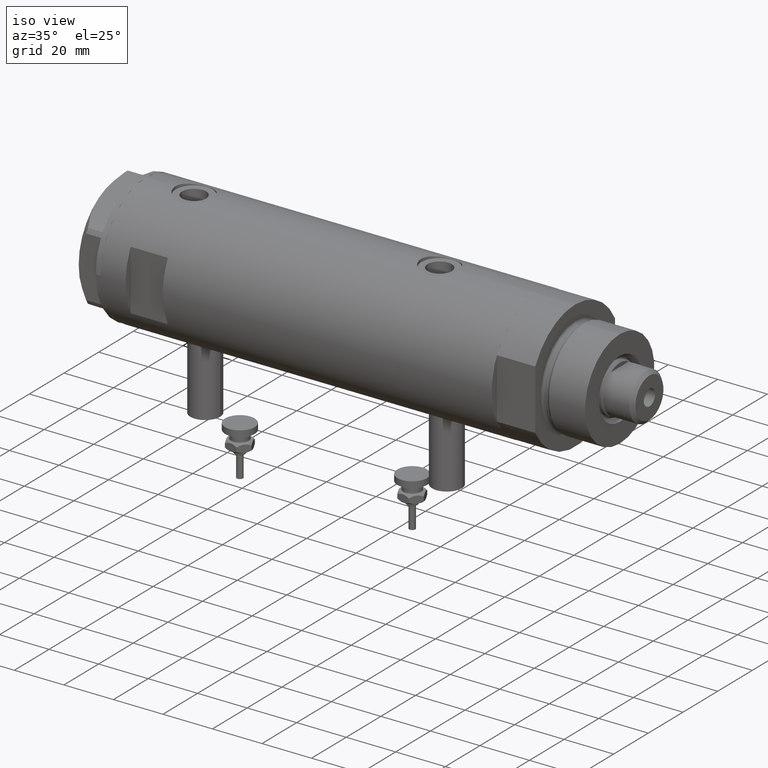
[diagram: clean part render]
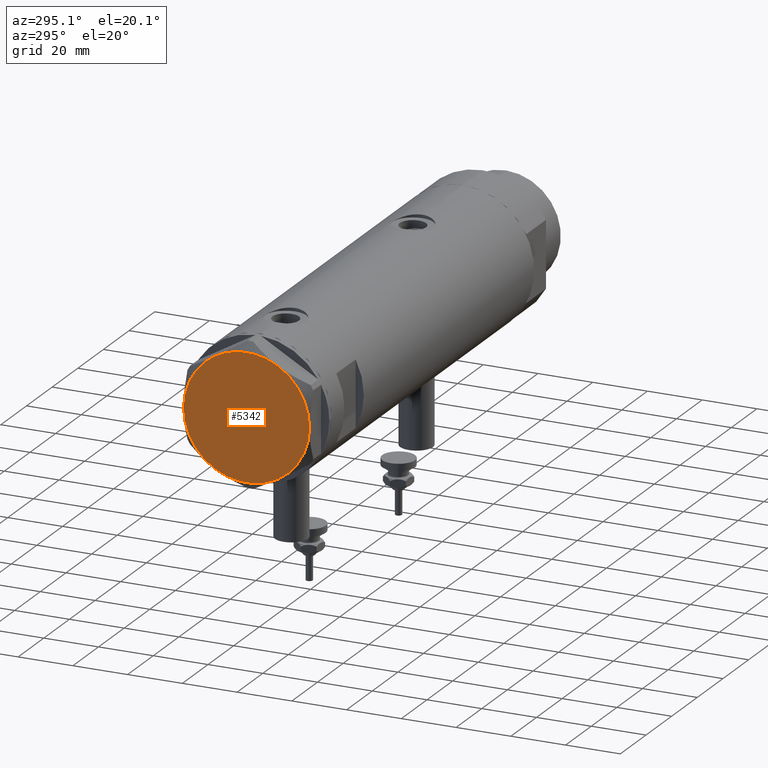
[diagram: tour spotlight — one face highlighted and labeled with its STEP entity id]
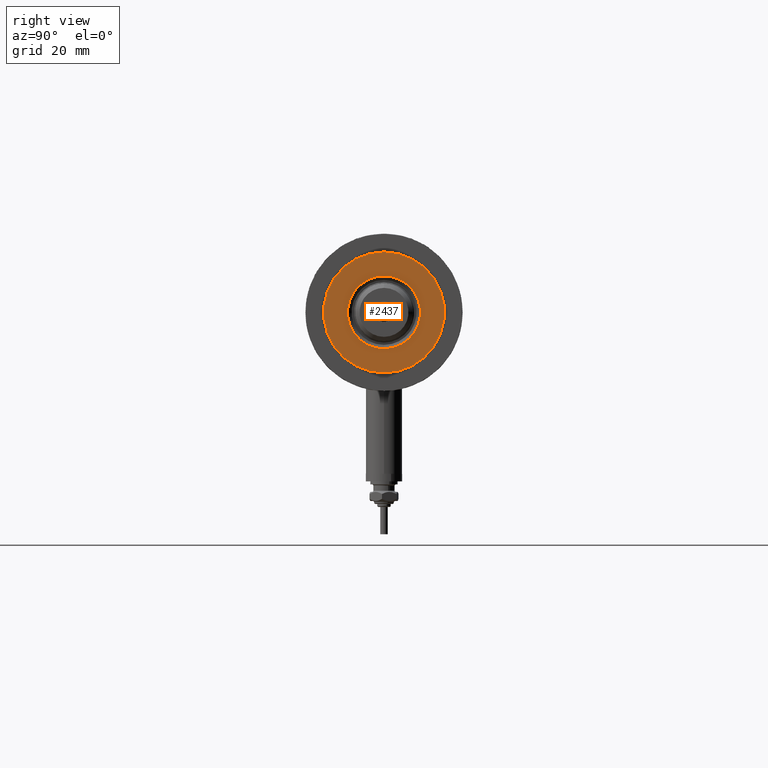
[diagram: tour spotlight — one face highlighted and labeled with its STEP entity id]
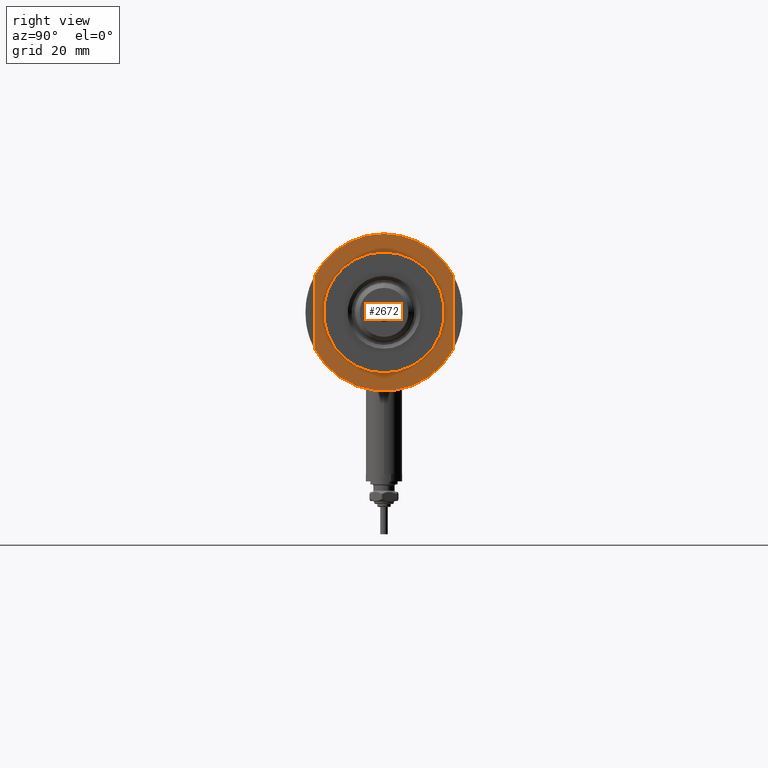
[diagram: tour spotlight — one face highlighted and labeled with its STEP entity id]
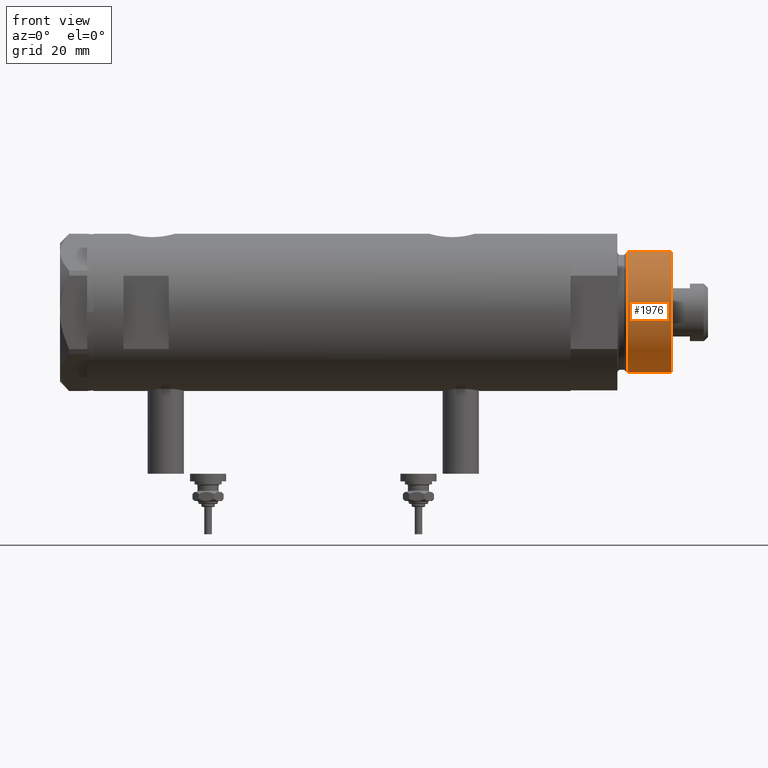
[diagram: tour spotlight — one face highlighted and labeled with its STEP entity id]
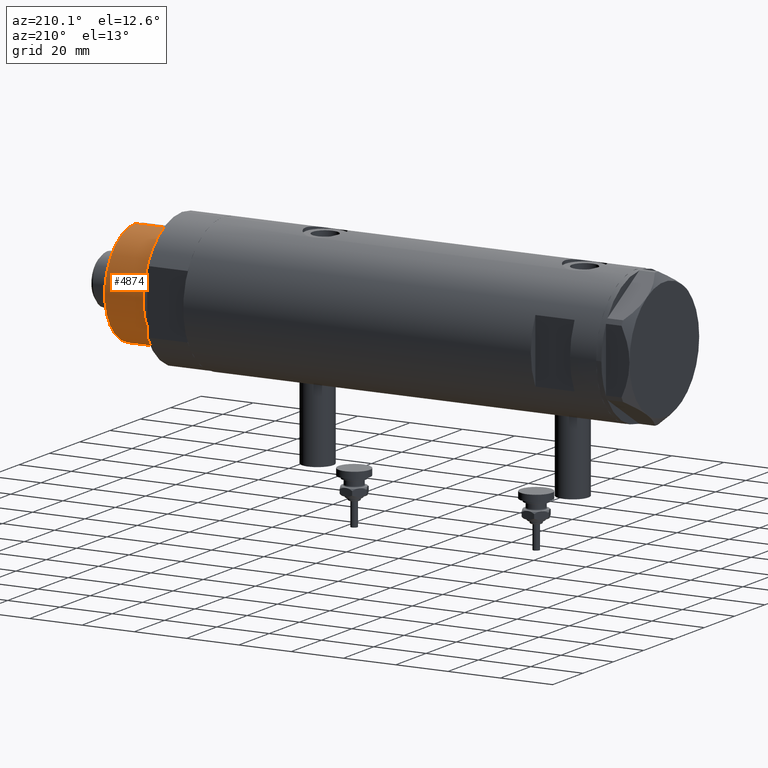
[diagram: tour spotlight — one face highlighted and labeled with its STEP entity id]
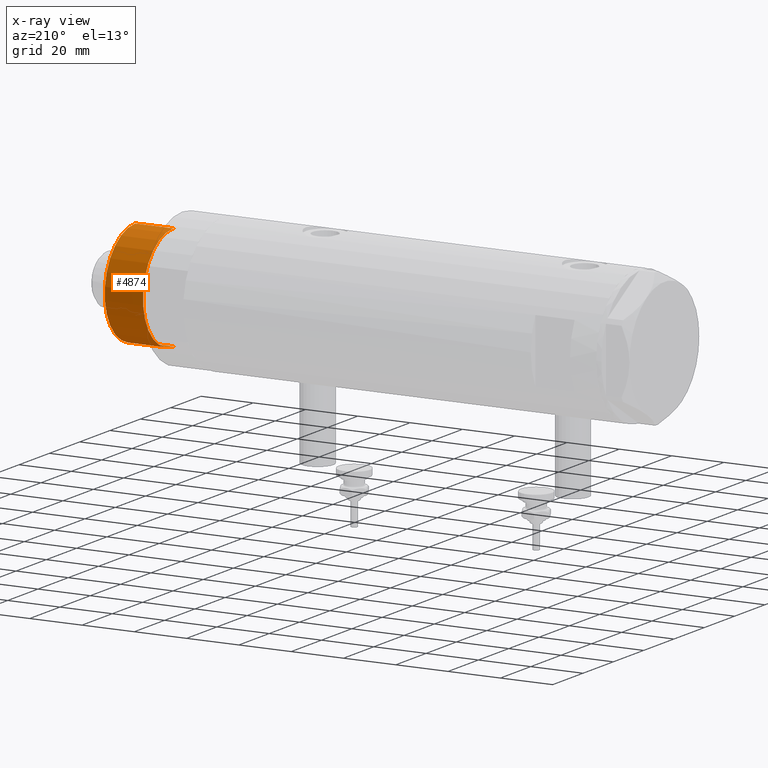
[diagram: x-ray of the same camera — body ghosted, this tour face saturated]
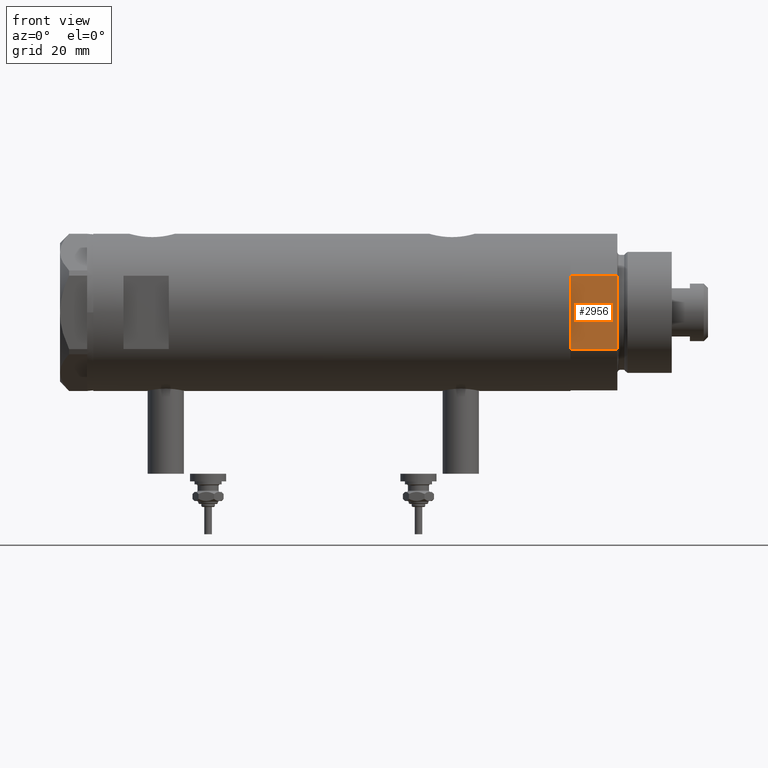
[diagram: tour spotlight — one face highlighted and labeled with its STEP entity id]
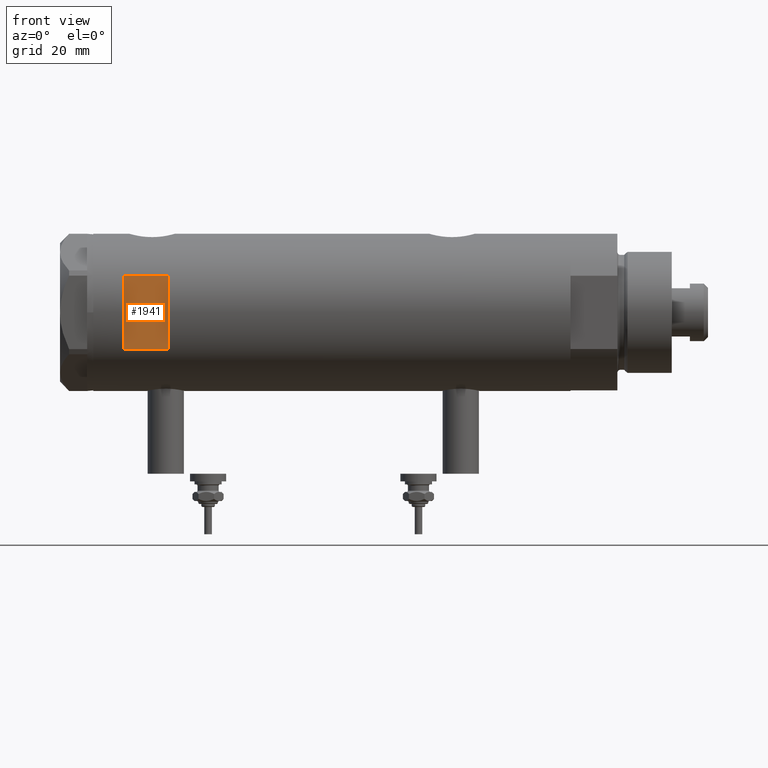
[diagram: tour spotlight — one face highlighted and labeled with its STEP entity id]
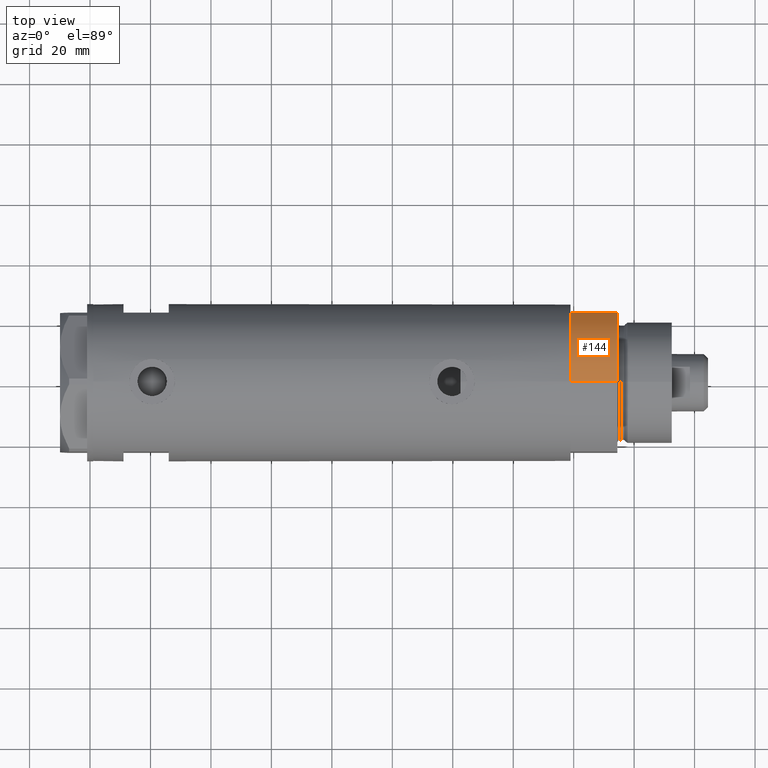
[diagram: tour spotlight — one face highlighted and labeled with its STEP entity id]
A machine part: a face-by-face anatomy tour. The part has 226 B-rep faces; the first image is the clean iso view, then the 8 largest visible faces are spotlighted one at a time (largest first), each with its STEP entity span.

Face 1 — auxiliary view, entity #5342. In plain terms, the highlighted planar face has unit normal (-1, -0, 0).
Definition (entity closure, byte-faithful):
#79 = EDGE_CURVE ( 'NONE', #1526, #1326, #6209, .T. ) ;
#153 = ORIENTED_EDGE ( 'NONE', *, *, #2644, .T. ) ;
#221 = CARTESIAN_POINT ( 'NONE',  ( -23.00000000000004619, -8.112498833180673323E-14, 9.000000000000000000 ) ) ;
#322 = VERTEX_POINT ( 'NONE', #4387 ) ;
#358 = FACE_OUTER_BOUND ( 'NONE', #4283, .T. ) ;
#404 = AXIS2_PLACEMENT_3D ( 'NONE', #3732, #4115, #1167 ) ;
#526 = EDGE_CURVE ( 'NONE', #3933, #4462, #4187, .T. ) ;
#836 = AXIS2_PLACEMENT_3D ( 'NONE', #4693, #2264, #2356 ) ;
#891 = DIRECTION ( 'NONE',  ( 0.000000000000000000, 0.000000000000000000, 1.000000000000000000 ) ) ;
#1167 = DIRECTION ( 'NONE',  ( 1.000000000000000000, 0.000000000000000000, 0.000000000000000000 ) ) ;
#1280 = DIRECTION ( 'NONE',  ( 1.000000000000000000, 0.000000000000000000, 0.000000000000000000 ) ) ;
#1326 = VERTEX_POINT ( 'NONE', #221 ) ;
#1526 = VERTEX_POINT ( 'NONE', #3296 ) ;
#1767 = DIRECTION ( 'NONE',  ( 1.000000000000000000, 0.000000000000000000, -0.000000000000000000 ) ) ;
#1965 = CIRCLE ( 'NONE', #4594, 23.00000000000004619 ) ;
#2036 = ORIENTED_EDGE ( 'NONE', *, *, #79, .T. ) ;
#2264 = DIRECTION ( 'NONE',  ( 0.000000000000000000, 0.000000000000000000, 1.000000000000000000 ) ) ;
#2290 = PLANE ( 'NONE',  #6045 ) ;
#2356 = DIRECTION ( 'NONE',  ( 1.000000000000000000, 0.000000000000000000, 0.000000000000000000 ) ) ;
#2490 = VERTEX_POINT ( 'NONE', #2656 ) ;
#2636 = EDGE_CURVE ( 'NONE', #322, #2490, #4897, .T. ) ;
#2644 = EDGE_CURVE ( 'NONE', #1326, #322, #3192, .T. ) ;
#2656 = CARTESIAN_POINT ( 'NONE',  ( 11.50000000000018296, -19.91858428704203732, 9.000000000000000000 ) ) ;
#2724 = CARTESIAN_POINT ( 'NONE',  ( 0.000000000000000000, 0.000000000000000000, 9.000000000000000000 ) ) ;
#2881 = AXIS2_PLACEMENT_3D ( 'NONE', #4554, #5131, #5606 ) ;
#3124 = DIRECTION ( 'NONE',  ( 1.000000000000000000, 0.000000000000000000, 0.000000000000000000 ) ) ;
#3179 = CARTESIAN_POINT ( 'NONE',  ( 22.99999999999995026, 2.373657066004705010E-13, 9.000000000000000000 ) ) ;
#3192 = CIRCLE ( 'NONE', #4399, 23.00000000000004619 ) ;
#3296 = CARTESIAN_POINT ( 'NONE',  ( -11.50000000000004441, 19.91858428704211548, 9.000000000000000000 ) ) ;
#3499 = EDGE_CURVE ( 'NONE', #4462, #1526, #5118, .T. ) ;
#3732 = CARTESIAN_POINT ( 'NONE',  ( 0.000000000000000000, 0.000000000000000000, 9.000000000000000000 ) ) ;
#3933 = VERTEX_POINT ( 'NONE', #3179 ) ;
#3957 = ORIENTED_EDGE ( 'NONE', *, *, #3499, .T. ) ;
#3975 = ORIENTED_EDGE ( 'NONE', *, *, #4500, .T. ) ;
#4115 = DIRECTION ( 'NONE',  ( 0.000000000000000000, 0.000000000000000000, 1.000000000000000000 ) ) ;
#4187 = CIRCLE ( 'NONE', #4376, 23.00000000000004619 ) ;
#4283 = EDGE_LOOP ( 'NONE', ( #3975, #4606, #3957, #2036, #153, #4869 ) ) ;
#4376 = AXIS2_PLACEMENT_3D ( 'NONE', #5046, #4540, #3124 ) ;
#4387 = CARTESIAN_POINT ( 'NONE',  ( -11.49999999999990585, -19.91858428704219364, 9.000000000000000000 ) ) ;
#4399 = AXIS2_PLACEMENT_3D ( 'NONE', #2724, #6157, #1280 ) ;
#4462 = VERTEX_POINT ( 'NONE', #6213 ) ;
#4500 = EDGE_CURVE ( 'NONE', #2490, #3933, #1965, .T. ) ;
#4540 = DIRECTION ( 'NONE',  ( 0.000000000000000000, 0.000000000000000000, 1.000000000000000000 ) ) ;
#4554 = CARTESIAN_POINT ( 'NONE',  ( 0.000000000000000000, 0.000000000000000000, 9.000000000000000000 ) ) ;
#4594 = AXIS2_PLACEMENT_3D ( 'NONE', #4957, #5921, #5885 ) ;
#4606 = ORIENTED_EDGE ( 'NONE', *, *, #526, .T. ) ;
#4693 = CARTESIAN_POINT ( 'NONE',  ( 0.000000000000000000, 0.000000000000000000, 9.000000000000000000 ) ) ;
#4869 = ORIENTED_EDGE ( 'NONE', *, *, #2636, .T. ) ;
#4897 = CIRCLE ( 'NONE', #2881, 23.00000000000004619 ) ;
#4957 = CARTESIAN_POINT ( 'NONE',  ( 0.000000000000000000, 0.000000000000000000, 9.000000000000000000 ) ) ;
#5046 = CARTESIAN_POINT ( 'NONE',  ( 0.000000000000000000, 0.000000000000000000, 9.000000000000000000 ) ) ;
#5118 = CIRCLE ( 'NONE', #836, 23.00000000000004619 ) ;
#5131 = DIRECTION ( 'NONE',  ( 0.000000000000000000, 0.000000000000000000, 1.000000000000000000 ) ) ;
#5342 = ADVANCED_FACE ( 'NONE', ( #358 ), #2290, .T. ) ;
#5606 = DIRECTION ( 'NONE',  ( 1.000000000000000000, 0.000000000000000000, 0.000000000000000000 ) ) ;
#5885 = DIRECTION ( 'NONE',  ( 1.000000000000000000, 0.000000000000000000, 0.000000000000000000 ) ) ;
#5921 = DIRECTION ( 'NONE',  ( 0.000000000000000000, 0.000000000000000000, 1.000000000000000000 ) ) ;
#6045 = AXIS2_PLACEMENT_3D ( 'NONE', #6138, #891, #1767 ) ;
#6138 = CARTESIAN_POINT ( 'NONE',  ( 0.000000000000000000, 0.000000000000000000, 9.000000000000000000 ) ) ;
#6157 = DIRECTION ( 'NONE',  ( 0.000000000000000000, 0.000000000000000000, 1.000000000000000000 ) ) ;
#6209 = CIRCLE ( 'NONE', #404, 23.00000000000004619 ) ;
#6213 = CARTESIAN_POINT ( 'NONE',  ( 11.49999999999990408, 19.91858428704219364, 9.000000000000000000 ) ) ;

Face 2 — right view, entity #2437. In plain terms, the highlighted planar face has unit normal (1, 0, -0).
Definition (entity closure, byte-faithful):
#83 = VERTEX_POINT ( 'NONE', #2742 ) ;
#299 = CARTESIAN_POINT ( 'NONE',  ( 0.000000000000000000, 0.000000000000000000, 33.50000000000000000 ) ) ;
#303 = CIRCLE ( 'NONE', #2357, 19.99999999999999645 ) ;
#625 = EDGE_CURVE ( 'NONE', #83, #3099, #303, .T. ) ;
#928 = CARTESIAN_POINT ( 'NONE',  ( -12.05000000000000426, 1.475699392972560823E-15, 33.50000000000000000 ) ) ;
#1113 = DIRECTION ( 'NONE',  ( 1.000000000000000000, 0.000000000000000000, -0.000000000000000000 ) ) ;
#1359 = CIRCLE ( 'NONE', #4910, 12.05000000000000426 ) ;
#1370 = VERTEX_POINT ( 'NONE', #4552 ) ;
#1879 = DIRECTION ( 'NONE',  ( 0.000000000000000000, 0.000000000000000000, 1.000000000000000000 ) ) ;
#2357 = AXIS2_PLACEMENT_3D ( 'NONE', #299, #3154, #3659 ) ;
#2383 = CIRCLE ( 'NONE', #2776, 19.99999999999999645 ) ;
#2437 = ADVANCED_FACE ( 'NONE', ( #3137, #3614 ), #3583, .T. ) ;
#2742 = CARTESIAN_POINT ( 'NONE',  ( -19.99999999999999645, 0.000000000000000000, 33.50000000000000000 ) ) ;
#2759 = DIRECTION ( 'NONE',  ( 1.000000000000000000, 0.000000000000000000, 0.000000000000000000 ) ) ;
#2776 = AXIS2_PLACEMENT_3D ( 'NONE', #4765, #1879, #5178 ) ;
#3078 = CARTESIAN_POINT ( 'NONE',  ( 0.000000000000000000, 0.000000000000000000, 33.50000000000000000 ) ) ;
#3099 = VERTEX_POINT ( 'NONE', #3132 ) ;
#3100 = CIRCLE ( 'NONE', #3405, 12.05000000000000426 ) ;
#3116 = EDGE_CURVE ( 'NONE', #3099, #83, #2383, .T. ) ;
#3132 = CARTESIAN_POINT ( 'NONE',  ( 19.99999999999999645, 2.449293598294706119E-15, 33.50000000000000000 ) ) ;
#3137 = FACE_BOUND ( 'NONE', #3758, .T. ) ;
#3154 = DIRECTION ( 'NONE',  ( 0.000000000000000000, 0.000000000000000000, 1.000000000000000000 ) ) ;
#3405 = AXIS2_PLACEMENT_3D ( 'NONE', #3078, #4086, #6000 ) ;
#3583 = PLANE ( 'NONE',  #6239 ) ;
#3614 = FACE_OUTER_BOUND ( 'NONE', #3962, .T. ) ;
#3659 = DIRECTION ( 'NONE',  ( 1.000000000000000000, 0.000000000000000000, 0.000000000000000000 ) ) ;
#3689 = ORIENTED_EDGE ( 'NONE', *, *, #625, .T. ) ;
#3700 = VERTEX_POINT ( 'NONE', #928 ) ;
#3758 = EDGE_LOOP ( 'NONE', ( #4671, #4737 ) ) ;
#3839 = CARTESIAN_POINT ( 'NONE',  ( 0.000000000000000000, 0.000000000000000000, 33.50000000000000000 ) ) ;
#3962 = EDGE_LOOP ( 'NONE', ( #3689, #4997 ) ) ;
#4086 = DIRECTION ( 'NONE',  ( -0.000000000000000000, -0.000000000000000000, -1.000000000000000000 ) ) ;
#4199 = DIRECTION ( 'NONE',  ( -0.000000000000000000, -0.000000000000000000, -1.000000000000000000 ) ) ;
#4552 = CARTESIAN_POINT ( 'NONE',  ( 12.05000000000000426, 0.000000000000000000, 33.50000000000000000 ) ) ;
#4583 = CARTESIAN_POINT ( 'NONE',  ( 0.000000000000000000, 0.000000000000000000, 33.50000000000000000 ) ) ;
#4671 = ORIENTED_EDGE ( 'NONE', *, *, #5506, .T. ) ;
#4737 = ORIENTED_EDGE ( 'NONE', *, *, #5268, .T. ) ;
#4765 = CARTESIAN_POINT ( 'NONE',  ( 0.000000000000000000, 0.000000000000000000, 33.50000000000000000 ) ) ;
#4910 = AXIS2_PLACEMENT_3D ( 'NONE', #3839, #4199, #2759 ) ;
#4997 = ORIENTED_EDGE ( 'NONE', *, *, #3116, .T. ) ;
#5178 = DIRECTION ( 'NONE',  ( 1.000000000000000000, 0.000000000000000000, 0.000000000000000000 ) ) ;
#5268 = EDGE_CURVE ( 'NONE', #3700, #1370, #1359, .T. ) ;
#5506 = EDGE_CURVE ( 'NONE', #1370, #3700, #3100, .T. ) ;
#5964 = DIRECTION ( 'NONE',  ( 0.000000000000000000, 0.000000000000000000, 1.000000000000000000 ) ) ;
#6000 = DIRECTION ( 'NONE',  ( 1.000000000000000000, 0.000000000000000000, 0.000000000000000000 ) ) ;
#6239 = AXIS2_PLACEMENT_3D ( 'NONE', #4583, #5964, #1113 ) ;

Face 3 — right view, entity #2672. In plain terms, the highlighted planar face has unit normal (1, 0, -0).
Definition (entity closure, byte-faithful):
#13 = CIRCLE ( 'NONE', #4310, 26.00000000000000355 ) ;
#160 = EDGE_CURVE ( 'NONE', #3357, #5424, #6002, .T. ) ;
#260 = CARTESIAN_POINT ( 'NONE',  ( 0.000000000000000000, 0.000000000000000000, 15.50000000000000000 ) ) ;
#288 = DIRECTION ( 'NONE',  ( 1.000000000000000000, 0.000000000000000000, -0.000000000000000000 ) ) ;
#302 = LINE ( 'NONE', #2326, #2892 ) ;
#579 = ORIENTED_EDGE ( 'NONE', *, *, #4146, .T. ) ;
#620 = DIRECTION ( 'NONE',  ( 0.000000000000000000, 0.000000000000000000, 1.000000000000000000 ) ) ;
#626 = VECTOR ( 'NONE', #5344, 1000.000000000000000 ) ;
#723 = EDGE_LOOP ( 'NONE', ( #4637, #789 ) ) ;
#774 = CARTESIAN_POINT ( 'NONE',  ( 12.12435565298215323, -22.99999999999999645, 15.50000000000000000 ) ) ;
#789 = ORIENTED_EDGE ( 'NONE', *, *, #160, .T. ) ;
#875 = VERTEX_POINT ( 'NONE', #2419 ) ;
#1240 = CIRCLE ( 'NONE', #4114, 26.00000000000000355 ) ;
#1245 = DIRECTION ( 'NONE',  ( 0.000000000000000000, 0.000000000000000000, 1.000000000000000000 ) ) ;
#1246 = CIRCLE ( 'NONE', #2075, 26.00000000000000355 ) ;
#1317 = AXIS2_PLACEMENT_3D ( 'NONE', #6180, #4268, #1423 ) ;
#1423 = DIRECTION ( 'NONE',  ( 1.000000000000000000, 0.000000000000000000, 0.000000000000000000 ) ) ;
#1429 = DIRECTION ( 'NONE',  ( -0.000000000000000000, -0.000000000000000000, -1.000000000000000000 ) ) ;
#1464 = CARTESIAN_POINT ( 'NONE',  ( -12.12435565298215145, 23.00000000000000355, 15.50000000000000000 ) ) ;
#1600 = DIRECTION ( 'NONE',  ( 0.000000000000000000, 0.000000000000000000, 1.000000000000000000 ) ) ;
#1775 = DIRECTION ( 'NONE',  ( -1.000000000000000000, -0.000000000000000000, -0.000000000000000000 ) ) ;
#1836 = EDGE_LOOP ( 'NONE', ( #2500, #4612, #2472, #579, #5189 ) ) ;
#2075 = AXIS2_PLACEMENT_3D ( 'NONE', #4027, #1600, #5825 ) ;
#2226 = CARTESIAN_POINT ( 'NONE',  ( -12.12435565298214613, 23.00000000000000355, 15.50000000000000000 ) ) ;
#2289 = DIRECTION ( 'NONE',  ( 0.000000000000000000, 0.000000000000000000, 1.000000000000000000 ) ) ;
#2326 = CARTESIAN_POINT ( 'NONE',  ( -12.12435565298215145, -22.99999999999999645, 15.50000000000000000 ) ) ;
#2419 = CARTESIAN_POINT ( 'NONE',  ( -26.00000000000000355, 0.000000000000000000, 15.50000000000000000 ) ) ;
#2472 = ORIENTED_EDGE ( 'NONE', *, *, #4373, .F. ) ;
#2500 = ORIENTED_EDGE ( 'NONE', *, *, #3546, .F. ) ;
#2672 = ADVANCED_FACE ( 'NONE', ( #3235, #4648 ), #6099, .T. ) ;
#2861 = VERTEX_POINT ( 'NONE', #5958 ) ;
#2892 = VECTOR ( 'NONE', #1775, 1000.000000000000000 ) ;
#2962 = CARTESIAN_POINT ( 'NONE',  ( -20.00000000000000000, 2.449293598294706513E-15, 15.50000000000000000 ) ) ;
#3126 = AXIS2_PLACEMENT_3D ( 'NONE', #6319, #1429, #5345 ) ;
#3235 = FACE_BOUND ( 'NONE', #723, .T. ) ;
#3357 = VERTEX_POINT ( 'NONE', #2962 ) ;
#3381 = CARTESIAN_POINT ( 'NONE',  ( -12.12435565298215323, -22.99999999999999645, 15.50000000000000000 ) ) ;
#3529 = CARTESIAN_POINT ( 'NONE',  ( 20.00000000000000000, 0.000000000000000000, 15.50000000000000000 ) ) ;
#3530 = CIRCLE ( 'NONE', #3126, 20.00000000000000000 ) ;
#3546 = EDGE_CURVE ( 'NONE', #5174, #4805, #302, .T. ) ;
#3982 = CARTESIAN_POINT ( 'NONE',  ( 0.000000000000000000, 0.000000000000000000, 15.50000000000000000 ) ) ;
#4027 = CARTESIAN_POINT ( 'NONE',  ( 0.000000000000000000, 0.000000000000000000, 15.50000000000000000 ) ) ;
#4114 = AXIS2_PLACEMENT_3D ( 'NONE', #5165, #2289, #4228 ) ;
#4146 = EDGE_CURVE ( 'NONE', #5234, #875, #1240, .T. ) ;
#4156 = LINE ( 'NONE', #1464, #626 ) ;
#4228 = DIRECTION ( 'NONE',  ( 1.000000000000000000, 0.000000000000000000, 0.000000000000000000 ) ) ;
#4268 = DIRECTION ( 'NONE',  ( -0.000000000000000000, -0.000000000000000000, -1.000000000000000000 ) ) ;
#4310 = AXIS2_PLACEMENT_3D ( 'NONE', #3982, #620, #5984 ) ;
#4357 = EDGE_CURVE ( 'NONE', #5174, #2861, #1246, .T. ) ;
#4373 = EDGE_CURVE ( 'NONE', #5234, #2861, #4156, .T. ) ;
#4576 = EDGE_CURVE ( 'NONE', #875, #4805, #13, .T. ) ;
#4612 = ORIENTED_EDGE ( 'NONE', *, *, #4357, .T. ) ;
#4637 = ORIENTED_EDGE ( 'NONE', *, *, #6204, .T. ) ;
#4648 = FACE_OUTER_BOUND ( 'NONE', #1836, .T. ) ;
#4805 = VERTEX_POINT ( 'NONE', #3381 ) ;
#5105 = AXIS2_PLACEMENT_3D ( 'NONE', #260, #1245, #288 ) ;
#5165 = CARTESIAN_POINT ( 'NONE',  ( 0.000000000000000000, 0.000000000000000000, 15.50000000000000000 ) ) ;
#5174 = VERTEX_POINT ( 'NONE', #774 ) ;
#5189 = ORIENTED_EDGE ( 'NONE', *, *, #4576, .T. ) ;
#5234 = VERTEX_POINT ( 'NONE', #2226 ) ;
#5344 = DIRECTION ( 'NONE',  ( 1.000000000000000000, 0.000000000000000000, 0.000000000000000000 ) ) ;
#5345 = DIRECTION ( 'NONE',  ( 1.000000000000000000, 0.000000000000000000, 0.000000000000000000 ) ) ;
#5424 = VERTEX_POINT ( 'NONE', #3529 ) ;
#5825 = DIRECTION ( 'NONE',  ( 1.000000000000000000, 0.000000000000000000, 0.000000000000000000 ) ) ;
#5958 = CARTESIAN_POINT ( 'NONE',  ( 12.12435565298214790, 23.00000000000000355, 15.50000000000000000 ) ) ;
#5984 = DIRECTION ( 'NONE',  ( 1.000000000000000000, 0.000000000000000000, 0.000000000000000000 ) ) ;
#6002 = CIRCLE ( 'NONE', #1317, 20.00000000000000000 ) ;
#6099 = PLANE ( 'NONE',  #5105 ) ;
#6180 = CARTESIAN_POINT ( 'NONE',  ( 0.000000000000000000, 0.000000000000000000, 15.50000000000000000 ) ) ;
#6204 = EDGE_CURVE ( 'NONE', #5424, #3357, #3530, .T. ) ;
#6319 = CARTESIAN_POINT ( 'NONE',  ( 0.000000000000000000, 0.000000000000000000, 15.50000000000000000 ) ) ;

Face 4 — front view, entity #1976. In plain terms, the highlighted cylindrical surface (partial cylindrical patch) has radius 20 mm, axis along (-1, -0, 0).
Definition (entity closure, byte-faithful):
#41 = EDGE_CURVE ( 'NONE', #5989, #5490, #94, .T. ) ;
#83 = VERTEX_POINT ( 'NONE', #2742 ) ;
#94 = CIRCLE ( 'NONE', #4669, 19.99999999999999645 ) ;
#229 = ORIENTED_EDGE ( 'NONE', *, *, #3961, .F. ) ;
#299 = CARTESIAN_POINT ( 'NONE',  ( 0.000000000000000000, 0.000000000000000000, 33.50000000000000000 ) ) ;
#303 = CIRCLE ( 'NONE', #2357, 19.99999999999999645 ) ;
#306 = DIRECTION ( 'NONE',  ( 1.000000000000000000, 0.000000000000000000, 0.000000000000000000 ) ) ;
#395 = DIRECTION ( 'NONE',  ( -1.000000000000000000, 0.000000000000000000, 0.000000000000000000 ) ) ;
#625 = EDGE_CURVE ( 'NONE', #83, #3099, #303, .T. ) ;
#1321 = DIRECTION ( 'NONE',  ( -0.000000000000000000, -0.000000000000000000, -1.000000000000000000 ) ) ;
#1363 = DIRECTION ( 'NONE',  ( -0.000000000000000000, -0.000000000000000000, -1.000000000000000000 ) ) ;
#1704 = CARTESIAN_POINT ( 'NONE',  ( 19.99999999999999645, 2.449293598294706119E-15, 33.50000000000000000 ) ) ;
#1976 = ADVANCED_FACE ( 'NONE', ( #3782 ), #5718, .T. ) ;
#2110 = ORIENTED_EDGE ( 'NONE', *, *, #625, .F. ) ;
#2267 = CARTESIAN_POINT ( 'NONE',  ( 0.000000000000000000, 0.000000000000000000, 18.87384048104053846 ) ) ;
#2357 = AXIS2_PLACEMENT_3D ( 'NONE', #299, #3154, #3659 ) ;
#2573 = AXIS2_PLACEMENT_3D ( 'NONE', #5682, #1321, #395 ) ;
#2574 = LINE ( 'NONE', #1704, #4093 ) ;
#2742 = CARTESIAN_POINT ( 'NONE',  ( -19.99999999999999645, 0.000000000000000000, 33.50000000000000000 ) ) ;
#3099 = VERTEX_POINT ( 'NONE', #3132 ) ;
#3114 = CARTESIAN_POINT ( 'NONE',  ( 19.99999999999999645, 2.449293598294706119E-15, 18.87384048104053846 ) ) ;
#3132 = CARTESIAN_POINT ( 'NONE',  ( 19.99999999999999645, 2.449293598294706119E-15, 33.50000000000000000 ) ) ;
#3154 = DIRECTION ( 'NONE',  ( 0.000000000000000000, 0.000000000000000000, 1.000000000000000000 ) ) ;
#3165 = CARTESIAN_POINT ( 'NONE',  ( -19.99999999999999645, 0.000000000000000000, 18.87384048104053846 ) ) ;
#3349 = LINE ( 'NONE', #4356, #4904 ) ;
#3659 = DIRECTION ( 'NONE',  ( 1.000000000000000000, 0.000000000000000000, 0.000000000000000000 ) ) ;
#3782 = FACE_OUTER_BOUND ( 'NONE', #6207, .T. ) ;
#3961 = EDGE_CURVE ( 'NONE', #3099, #5490, #2574, .T. ) ;
#4093 = VECTOR ( 'NONE', #5106, 1000.000000000000000 ) ;
#4267 = ORIENTED_EDGE ( 'NONE', *, *, #4724, .T. ) ;
#4356 = CARTESIAN_POINT ( 'NONE',  ( -19.99999999999999645, 0.000000000000000000, 33.50000000000000000 ) ) ;
#4669 = AXIS2_PLACEMENT_3D ( 'NONE', #2267, #5023, #306 ) ;
#4724 = EDGE_CURVE ( 'NONE', #83, #5989, #3349, .T. ) ;
#4904 = VECTOR ( 'NONE', #1363, 1000.000000000000000 ) ;
#5023 = DIRECTION ( 'NONE',  ( -0.000000000000000000, -0.000000000000000000, 1.000000000000000000 ) ) ;
#5106 = DIRECTION ( 'NONE',  ( -0.000000000000000000, -0.000000000000000000, -1.000000000000000000 ) ) ;
#5490 = VERTEX_POINT ( 'NONE', #3114 ) ;
#5682 = CARTESIAN_POINT ( 'NONE',  ( 0.000000000000000000, 0.000000000000000000, 33.50000000000000000 ) ) ;
#5718 = CYLINDRICAL_SURFACE ( 'NONE', #2573, 19.99999999999999645 ) ;
#5989 = VERTEX_POINT ( 'NONE', #3165 ) ;
#6207 = EDGE_LOOP ( 'NONE', ( #229, #2110, #4267, #6304 ) ) ;
#6304 = ORIENTED_EDGE ( 'NONE', *, *, #41, .T. ) ;

Face 5 — auxiliary view, entity #4874. An x-ray twin of the same camera follows (body ghosted, this face saturated) — the face is partly hidden behind the body. In plain terms, the highlighted cylindrical surface (partial cylindrical patch) has radius 20 mm, axis along (-1, -0, 0).
Definition (entity closure, byte-faithful):
#83 = VERTEX_POINT ( 'NONE', #2742 ) ;
#339 = CYLINDRICAL_SURFACE ( 'NONE', #1453, 19.99999999999999645 ) ;
#1363 = DIRECTION ( 'NONE',  ( -0.000000000000000000, -0.000000000000000000, -1.000000000000000000 ) ) ;
#1453 = AXIS2_PLACEMENT_3D ( 'NONE', #2802, #2298, #4237 ) ;
#1704 = CARTESIAN_POINT ( 'NONE',  ( 19.99999999999999645, 2.449293598294706119E-15, 33.50000000000000000 ) ) ;
#1879 = DIRECTION ( 'NONE',  ( 0.000000000000000000, 0.000000000000000000, 1.000000000000000000 ) ) ;
#2074 = ORIENTED_EDGE ( 'NONE', *, *, #3961, .T. ) ;
#2298 = DIRECTION ( 'NONE',  ( -0.000000000000000000, -0.000000000000000000, -1.000000000000000000 ) ) ;
#2383 = CIRCLE ( 'NONE', #2776, 19.99999999999999645 ) ;
#2574 = LINE ( 'NONE', #1704, #4093 ) ;
#2742 = CARTESIAN_POINT ( 'NONE',  ( -19.99999999999999645, 0.000000000000000000, 33.50000000000000000 ) ) ;
#2776 = AXIS2_PLACEMENT_3D ( 'NONE', #4765, #1879, #5178 ) ;
#2802 = CARTESIAN_POINT ( 'NONE',  ( 0.000000000000000000, 0.000000000000000000, 33.50000000000000000 ) ) ;
#3099 = VERTEX_POINT ( 'NONE', #3132 ) ;
#3114 = CARTESIAN_POINT ( 'NONE',  ( 19.99999999999999645, 2.449293598294706119E-15, 18.87384048104053846 ) ) ;
#3116 = EDGE_CURVE ( 'NONE', #3099, #83, #2383, .T. ) ;
#3132 = CARTESIAN_POINT ( 'NONE',  ( 19.99999999999999645, 2.449293598294706119E-15, 33.50000000000000000 ) ) ;
#3165 = CARTESIAN_POINT ( 'NONE',  ( -19.99999999999999645, 0.000000000000000000, 18.87384048104053846 ) ) ;
#3349 = LINE ( 'NONE', #4356, #4904 ) ;
#3679 = ORIENTED_EDGE ( 'NONE', *, *, #4724, .F. ) ;
#3720 = DIRECTION ( 'NONE',  ( -0.000000000000000000, -0.000000000000000000, 1.000000000000000000 ) ) ;
#3961 = EDGE_CURVE ( 'NONE', #3099, #5490, #2574, .T. ) ;
#3993 = ORIENTED_EDGE ( 'NONE', *, *, #5380, .T. ) ;
#4093 = VECTOR ( 'NONE', #5106, 1000.000000000000000 ) ;
#4237 = DIRECTION ( 'NONE',  ( -1.000000000000000000, 0.000000000000000000, 0.000000000000000000 ) ) ;
#4356 = CARTESIAN_POINT ( 'NONE',  ( -19.99999999999999645, 0.000000000000000000, 33.50000000000000000 ) ) ;
#4694 = FACE_OUTER_BOUND ( 'NONE', #6096, .T. ) ;
#4724 = EDGE_CURVE ( 'NONE', #83, #5989, #3349, .T. ) ;
#4765 = CARTESIAN_POINT ( 'NONE',  ( 0.000000000000000000, 0.000000000000000000, 33.50000000000000000 ) ) ;
#4874 = ADVANCED_FACE ( 'NONE', ( #4694 ), #339, .T. ) ;
#4904 = VECTOR ( 'NONE', #1363, 1000.000000000000000 ) ;
#4934 = ORIENTED_EDGE ( 'NONE', *, *, #3116, .F. ) ;
#5106 = DIRECTION ( 'NONE',  ( -0.000000000000000000, -0.000000000000000000, -1.000000000000000000 ) ) ;
#5178 = DIRECTION ( 'NONE',  ( 1.000000000000000000, 0.000000000000000000, 0.000000000000000000 ) ) ;
#5323 = AXIS2_PLACEMENT_3D ( 'NONE', #5712, #3720, #5677 ) ;
#5380 = EDGE_CURVE ( 'NONE', #5490, #5989, #5731, .T. ) ;
#5490 = VERTEX_POINT ( 'NONE', #3114 ) ;
#5677 = DIRECTION ( 'NONE',  ( 1.000000000000000000, 0.000000000000000000, 0.000000000000000000 ) ) ;
#5712 = CARTESIAN_POINT ( 'NONE',  ( 0.000000000000000000, 0.000000000000000000, 18.87384048104053846 ) ) ;
#5731 = CIRCLE ( 'NONE', #5323, 19.99999999999999645 ) ;
#5989 = VERTEX_POINT ( 'NONE', #3165 ) ;
#6096 = EDGE_LOOP ( 'NONE', ( #4934, #2074, #3993, #3679 ) ) ;

Face 6 — front view, entity #2956. In plain terms, the highlighted planar face has unit normal (-0, 1, 0).
Definition (entity closure, byte-faithful):
#45 = DIRECTION ( 'NONE',  ( -0.000000000000000000, -0.000000000000000000, 1.000000000000000000 ) ) ;
#86 = EDGE_CURVE ( 'NONE', #2414, #2909, #3131, .T. ) ;
#253 = DIRECTION ( 'NONE',  ( -0.000000000000000000, 1.000000000000000000, 0.000000000000000000 ) ) ;
#302 = LINE ( 'NONE', #2326, #2892 ) ;
#759 = DIRECTION ( 'NONE',  ( -1.000000000000000000, -0.000000000000000000, -0.000000000000000000 ) ) ;
#774 = CARTESIAN_POINT ( 'NONE',  ( 12.12435565298215323, -22.99999999999999645, 15.50000000000000000 ) ) ;
#785 = DIRECTION ( 'NONE',  ( 0.000000000000000000, -0.000000000000000000, 1.000000000000000000 ) ) ;
#1034 = CARTESIAN_POINT ( 'NONE',  ( -12.12435565298215145, -22.99999999999999645, 0.000000000000000000 ) ) ;
#1271 = CARTESIAN_POINT ( 'NONE',  ( -12.12435565298215145, -22.99999999999999645, 0.000000000000000000 ) ) ;
#1476 = ORIENTED_EDGE ( 'NONE', *, *, #3623, .T. ) ;
#1487 = EDGE_LOOP ( 'NONE', ( #3442, #4846, #3966, #1476 ) ) ;
#1658 = EDGE_CURVE ( 'NONE', #2909, #4805, #4425, .T. ) ;
#1749 = PLANE ( 'NONE',  #2477 ) ;
#1775 = DIRECTION ( 'NONE',  ( -1.000000000000000000, -0.000000000000000000, -0.000000000000000000 ) ) ;
#2326 = CARTESIAN_POINT ( 'NONE',  ( -12.12435565298215145, -22.99999999999999645, 15.50000000000000000 ) ) ;
#2414 = VERTEX_POINT ( 'NONE', #4969 ) ;
#2477 = AXIS2_PLACEMENT_3D ( 'NONE', #3162, #253, #785 ) ;
#2892 = VECTOR ( 'NONE', #1775, 1000.000000000000000 ) ;
#2909 = VERTEX_POINT ( 'NONE', #4933 ) ;
#2956 = ADVANCED_FACE ( 'NONE', ( #3576 ), #1749, .F. ) ;
#3131 = LINE ( 'NONE', #1271, #6321 ) ;
#3162 = CARTESIAN_POINT ( 'NONE',  ( -12.12435565298215145, -22.99999999999999645, 0.000000000000000000 ) ) ;
#3348 = LINE ( 'NONE', #5172, #5320 ) ;
#3381 = CARTESIAN_POINT ( 'NONE',  ( -12.12435565298215323, -22.99999999999999645, 15.50000000000000000 ) ) ;
#3442 = ORIENTED_EDGE ( 'NONE', *, *, #3546, .T. ) ;
#3546 = EDGE_CURVE ( 'NONE', #5174, #4805, #302, .T. ) ;
#3576 = FACE_OUTER_BOUND ( 'NONE', #1487, .T. ) ;
#3623 = EDGE_CURVE ( 'NONE', #2414, #5174, #3348, .T. ) ;
#3966 = ORIENTED_EDGE ( 'NONE', *, *, #86, .F. ) ;
#4425 = LINE ( 'NONE', #1034, #5812 ) ;
#4805 = VERTEX_POINT ( 'NONE', #3381 ) ;
#4846 = ORIENTED_EDGE ( 'NONE', *, *, #1658, .F. ) ;
#4933 = CARTESIAN_POINT ( 'NONE',  ( -12.12435565298215501, -22.99999999999999645, 0.000000000000000000 ) ) ;
#4969 = CARTESIAN_POINT ( 'NONE',  ( 12.12435565298215323, -22.99999999999999645, 0.000000000000000000 ) ) ;
#5172 = CARTESIAN_POINT ( 'NONE',  ( 12.12435565298215323, -22.99999999999999645, 0.000000000000000000 ) ) ;
#5174 = VERTEX_POINT ( 'NONE', #774 ) ;
#5272 = DIRECTION ( 'NONE',  ( -0.000000000000000000, -0.000000000000000000, 1.000000000000000000 ) ) ;
#5320 = VECTOR ( 'NONE', #5272, 1000.000000000000000 ) ;
#5812 = VECTOR ( 'NONE', #45, 1000.000000000000000 ) ;
#6321 = VECTOR ( 'NONE', #759, 1000.000000000000000 ) ;

Face 7 — front view, entity #1941. In plain terms, the highlighted planar face has unit normal (-0, 1, 0).
Definition (entity closure, byte-faithful):
#108 = ORIENTED_EDGE ( 'NONE', *, *, #1070, .F. ) ;
#166 = EDGE_CURVE ( 'NONE', #6054, #1135, #1838, .T. ) ;
#336 = DIRECTION ( 'NONE',  ( 0.000000000000000000, -0.000000000000000000, 1.000000000000000000 ) ) ;
#397 = DIRECTION ( 'NONE',  ( -0.000000000000000000, -0.000000000000000000, -1.000000000000000000 ) ) ;
#464 = VERTEX_POINT ( 'NONE', #1226 ) ;
#609 = DIRECTION ( 'NONE',  ( 1.000000000000000000, -0.000000000000000000, -0.000000000000000000 ) ) ;
#851 = CARTESIAN_POINT ( 'NONE',  ( -12.12435565298214080, -23.00000000000000355, 53.95000000000001705 ) ) ;
#953 = EDGE_CURVE ( 'NONE', #1135, #464, #1634, .T. ) ;
#1024 = AXIS2_PLACEMENT_3D ( 'NONE', #4329, #6277, #336 ) ;
#1070 = EDGE_CURVE ( 'NONE', #3012, #464, #6039, .T. ) ;
#1135 = VERTEX_POINT ( 'NONE', #4680 ) ;
#1184 = CARTESIAN_POINT ( 'NONE',  ( 12.12435565298214080, -23.00000000000000355, -78.95000000000000284 ) ) ;
#1226 = CARTESIAN_POINT ( 'NONE',  ( 12.12435565298214080, -23.00000000000000355, 68.95000000000003126 ) ) ;
#1329 = VECTOR ( 'NONE', #4626, 1000.000000000000000 ) ;
#1634 = LINE ( 'NONE', #1184, #1329 ) ;
#1838 = LINE ( 'NONE', #3384, #4772 ) ;
#1941 = ADVANCED_FACE ( 'NONE', ( #3410 ), #2765, .F. ) ;
#2765 = PLANE ( 'NONE',  #1024 ) ;
#3012 = VERTEX_POINT ( 'NONE', #6023 ) ;
#3133 = EDGE_LOOP ( 'NONE', ( #4877, #5085, #6140, #108 ) ) ;
#3210 = CARTESIAN_POINT ( 'NONE',  ( -26.00000000000000355, -23.00000000000000355, 68.95000000000003126 ) ) ;
#3384 = CARTESIAN_POINT ( 'NONE',  ( -26.00000000000000355, -23.00000000000000355, 53.95000000000002416 ) ) ;
#3410 = FACE_OUTER_BOUND ( 'NONE', #3133, .T. ) ;
#3577 = VECTOR ( 'NONE', #609, 1000.000000000000000 ) ;
#3604 = VECTOR ( 'NONE', #397, 1000.000000000000000 ) ;
#3606 = EDGE_CURVE ( 'NONE', #3012, #6054, #4759, .T. ) ;
#4329 = CARTESIAN_POINT ( 'NONE',  ( -26.00000000000000355, -23.00000000000000355, 68.95000000000003126 ) ) ;
#4626 = DIRECTION ( 'NONE',  ( 0.000000000000000000, 0.000000000000000000, 1.000000000000000000 ) ) ;
#4680 = CARTESIAN_POINT ( 'NONE',  ( 12.12435565298214080, -23.00000000000000355, 53.95000000000001705 ) ) ;
#4759 = LINE ( 'NONE', #5242, #3604 ) ;
#4772 = VECTOR ( 'NONE', #6248, 1000.000000000000000 ) ;
#4877 = ORIENTED_EDGE ( 'NONE', *, *, #3606, .T. ) ;
#5085 = ORIENTED_EDGE ( 'NONE', *, *, #166, .T. ) ;
#5242 = CARTESIAN_POINT ( 'NONE',  ( -12.12435565298214080, -23.00000000000000355, -78.95000000000000284 ) ) ;
#6023 = CARTESIAN_POINT ( 'NONE',  ( -12.12435565298214080, -23.00000000000000355, 68.95000000000003126 ) ) ;
#6039 = LINE ( 'NONE', #3210, #3577 ) ;
#6054 = VERTEX_POINT ( 'NONE', #851 ) ;
#6140 = ORIENTED_EDGE ( 'NONE', *, *, #953, .T. ) ;
#6248 = DIRECTION ( 'NONE',  ( 1.000000000000000000, -0.000000000000000000, -0.000000000000000000 ) ) ;
#6277 = DIRECTION ( 'NONE',  ( 0.000000000000000000, 1.000000000000000000, 0.000000000000000000 ) ) ;

Face 8 — top view, entity #144. In plain terms, the highlighted cylindrical surface (partial cylindrical patch) has radius 26 mm, axis along (-1, -0, 0).
Definition (entity closure, byte-faithful):
#19 = VECTOR ( 'NONE', #962, 1000.000000000000000 ) ;
#144 = ADVANCED_FACE ( 'NONE', ( #719 ), #4610, .T. ) ;
#252 = CARTESIAN_POINT ( 'NONE',  ( 0.000000000000000000, 0.000000000000000000, 15.50000000000000000 ) ) ;
#374 = DIRECTION ( 'NONE',  ( 0.000000000000000000, 0.000000000000000000, 1.000000000000000000 ) ) ;
#627 = DIRECTION ( 'NONE',  ( -0.000000000000000000, -0.000000000000000000, -1.000000000000000000 ) ) ;
#719 = FACE_OUTER_BOUND ( 'NONE', #1394, .T. ) ;
#875 = VERTEX_POINT ( 'NONE', #2419 ) ;
#962 = DIRECTION ( 'NONE',  ( -0.000000000000000000, -0.000000000000000000, 1.000000000000000000 ) ) ;
#1105 = CARTESIAN_POINT ( 'NONE',  ( -26.00000000000000355, 0.000000000000000000, 0.000000000000000000 ) ) ;
#1240 = CIRCLE ( 'NONE', #4114, 26.00000000000000355 ) ;
#1349 = AXIS2_PLACEMENT_3D ( 'NONE', #3884, #374, #2429 ) ;
#1394 = EDGE_LOOP ( 'NONE', ( #1796, #5090, #1421, #4573 ) ) ;
#1421 = ORIENTED_EDGE ( 'NONE', *, *, #5073, .F. ) ;
#1796 = ORIENTED_EDGE ( 'NONE', *, *, #2916, .F. ) ;
#2206 = DIRECTION ( 'NONE',  ( -0.000000000000000000, -0.000000000000000000, -1.000000000000000000 ) ) ;
#2226 = CARTESIAN_POINT ( 'NONE',  ( -12.12435565298214613, 23.00000000000000355, 15.50000000000000000 ) ) ;
#2289 = DIRECTION ( 'NONE',  ( 0.000000000000000000, 0.000000000000000000, 1.000000000000000000 ) ) ;
#2419 = CARTESIAN_POINT ( 'NONE',  ( -26.00000000000000355, 0.000000000000000000, 15.50000000000000000 ) ) ;
#2429 = DIRECTION ( 'NONE',  ( 1.000000000000000000, 0.000000000000000000, 0.000000000000000000 ) ) ;
#2448 = CARTESIAN_POINT ( 'NONE',  ( -12.12435565298215145, 23.00000000000000355, 0.000000000000000000 ) ) ;
#2518 = VERTEX_POINT ( 'NONE', #1105 ) ;
#2916 = EDGE_CURVE ( 'NONE', #875, #2518, #3920, .T. ) ;
#3413 = LINE ( 'NONE', #5336, #19 ) ;
#3664 = VERTEX_POINT ( 'NONE', #2448 ) ;
#3884 = CARTESIAN_POINT ( 'NONE',  ( 0.000000000000000000, 0.000000000000000000, 0.000000000000000000 ) ) ;
#3920 = LINE ( 'NONE', #4464, #4002 ) ;
#3973 = AXIS2_PLACEMENT_3D ( 'NONE', #252, #2206, #4144 ) ;
#4002 = VECTOR ( 'NONE', #627, 1000.000000000000000 ) ;
#4114 = AXIS2_PLACEMENT_3D ( 'NONE', #5165, #2289, #4228 ) ;
#4144 = DIRECTION ( 'NONE',  ( -1.000000000000000000, 0.000000000000000000, 0.000000000000000000 ) ) ;
#4146 = EDGE_CURVE ( 'NONE', #5234, #875, #1240, .T. ) ;
#4228 = DIRECTION ( 'NONE',  ( 1.000000000000000000, 0.000000000000000000, 0.000000000000000000 ) ) ;
#4464 = CARTESIAN_POINT ( 'NONE',  ( -26.00000000000000355, 0.000000000000000000, 15.50000000000000000 ) ) ;
#4465 = EDGE_CURVE ( 'NONE', #3664, #2518, #5308, .T. ) ;
#4573 = ORIENTED_EDGE ( 'NONE', *, *, #4465, .T. ) ;
#4610 = CYLINDRICAL_SURFACE ( 'NONE', #3973, 26.00000000000000355 ) ;
#5073 = EDGE_CURVE ( 'NONE', #3664, #5234, #3413, .T. ) ;
#5090 = ORIENTED_EDGE ( 'NONE', *, *, #4146, .F. ) ;
#5165 = CARTESIAN_POINT ( 'NONE',  ( 0.000000000000000000, 0.000000000000000000, 15.50000000000000000 ) ) ;
#5234 = VERTEX_POINT ( 'NONE', #2226 ) ;
#5308 = CIRCLE ( 'NONE', #1349, 26.00000000000000355 ) ;
#5336 = CARTESIAN_POINT ( 'NONE',  ( -12.12435565298215145, 23.00000000000000355, 0.000000000000000000 ) ) ;